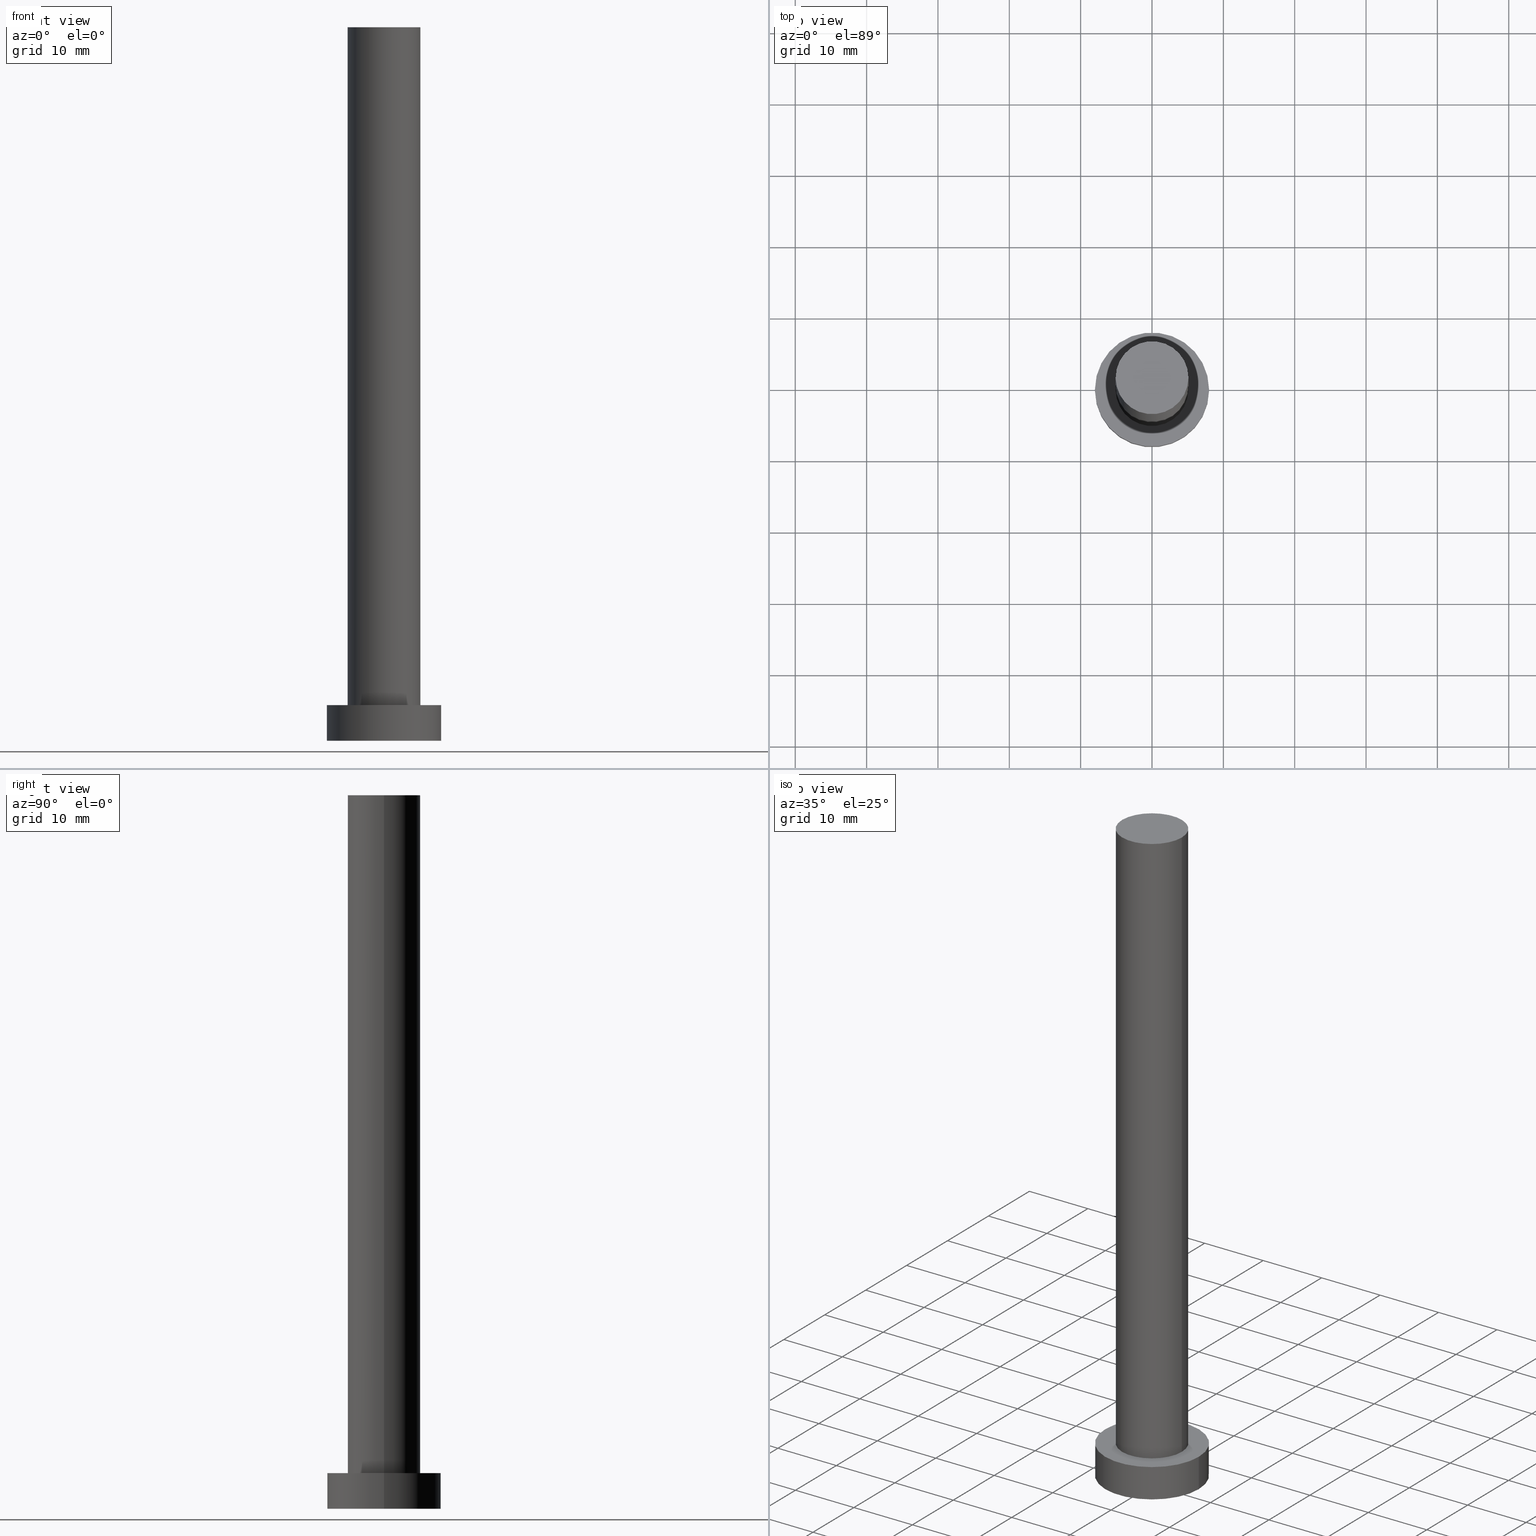
[diagram: canonical four-view strip — front | top / right | iso, engineering-drawing reading convention]
A machine part, canonical four-view strip (front | top / right | iso — engineering-drawing reading convention). The complete STEP part file that produces these views, byte-faithful:
ISO-10303-21;
HEADER;
FILE_DESCRIPTION (( 'STEP AP203' ),
    '1' );
FILE_NAME ('2f03.STEP',
    '2023-02-13T09:57:52',
    ( '' ),
    ( '' ),
    'SwSTEP 2.0',
    'SolidWorks 2019',
    '' );
FILE_SCHEMA (( 'CONFIG_CONTROL_DESIGN' ));
ENDSEC;

DATA;
#1 = DIRECTION ( 'NONE',  ( 1.000000000000000000, 0.000000000000000000, 0.000000000000000000 ) ) ;
#2 = DIRECTION ( 'NONE',  ( -0.000000000000000000, -0.000000000000000000, -1.000000000000000000 ) ) ;
#3 = AXIS2_PLACEMENT_3D ( 'NONE', #49, #132, #120 ) ;
#4 = EDGE_CURVE ( 'NONE', #76, #124, #122, .T. ) ;
#5 = AXIS2_PLACEMENT_3D ( 'NONE', #81, #219, #125 ) ;
#6 = DIRECTION ( 'NONE',  ( 1.000000000000000000, 0.000000000000000000, -0.000000000000000000 ) ) ;
#7 = PERSON_AND_ORGANIZATION_ROLE ( 'creator' ) ;
#8 = ORIENTED_EDGE ( 'NONE', *, *, #147, .F. ) ;
#9 = DIRECTION ( 'NONE',  ( 0.000000000000000000, 0.000000000000000000, 1.000000000000000000 ) ) ;
#10 = PERSON_AND_ORGANIZATION_ROLE ( 'creator' ) ;
#11 = ORIENTED_EDGE ( 'NONE', *, *, #139, .T. ) ;
#12 = FACE_OUTER_BOUND ( 'NONE', #212, .T. ) ;
#13 = AXIS2_PLACEMENT_3D ( 'NONE', #22, #65, #1 ) ;
#14 = PERSON_AND_ORGANIZATION ( #223, #46 ) ;
#15 = ORIENTED_EDGE ( 'NONE', *, *, #48, .T. ) ;
#16 = LINE ( 'NONE', #183, #117 ) ;
#17 = SECURITY_CLASSIFICATION_LEVEL ( 'unclassified' ) ;
#18 = ORIENTED_EDGE ( 'NONE', *, *, #147, .T. ) ;
#19 = CARTESIAN_POINT ( 'NONE',  ( 0.000000000000000000, 0.000000000000000000, 100.0000000000000000 ) ) ;
#20 = PRODUCT_DEFINITION_SHAPE ( 'NONE', 'NONE',  #180 ) ;
#21 = CC_DESIGN_PERSON_AND_ORGANIZATION_ASSIGNMENT ( #177, #10, ( #180 ) ) ;
#22 = CARTESIAN_POINT ( 'NONE',  ( 0.000000000000000000, 0.000000000000000000, 5.000000000000000000 ) ) ;
#23 = CYLINDRICAL_SURFACE ( 'NONE', #29, 5.100000000000001421 ) ;
#24 = APPROVAL_PERSON_ORGANIZATION ( #138, #130, #35 ) ;
#25 = DIRECTION ( 'NONE',  ( -1.000000000000000000, 0.000000000000000000, 0.000000000000000000 ) ) ;
#26 = EDGE_CURVE ( 'NONE', #215, #99, #16, .T. ) ;
#27 = EDGE_CURVE ( 'NONE', #217, #215, #63, .T. ) ;
#28 = PLANE ( 'NONE',  #3 ) ;
#29 = AXIS2_PLACEMENT_3D ( 'NONE', #111, #2, #25 ) ;
#30 = ORIENTED_EDGE ( 'NONE', *, *, #26, .F. ) ;
#31 = DIRECTION ( 'NONE',  ( 1.000000000000000000, 0.000000000000000000, 0.000000000000000000 ) ) ;
#32 = EDGE_LOOP ( 'NONE', ( #185, #144 ) ) ;
#33 = DIRECTION ( 'NONE',  ( 0.000000000000000000, 0.000000000000000000, 1.000000000000000000 ) ) ;
#34 = EDGE_CURVE ( 'NONE', #104, #124, #101, .T. ) ;
#35 = APPROVAL_ROLE ( '' ) ;
#36 = LOCAL_TIME ( 10, 57, 52.00000000000000000, #98 ) ;
#37 = ORIENTED_EDGE ( 'NONE', *, *, #213, .T. ) ;
#38 = DATE_AND_TIME ( #161, #136 ) ;
#39 = ORIENTED_EDGE ( 'NONE', *, *, #139, .F. ) ;
#40 = CLOSED_SHELL ( 'NONE', ( #220, #93, #255, #160, #66, #204, #127 ) ) ;
#41 = CYLINDRICAL_SURFACE ( 'NONE', #170, 5.100000000000001421 ) ;
#42 = CC_DESIGN_DATE_AND_TIME_ASSIGNMENT ( #38, #59, ( #180 ) ) ;
#43 = DIRECTION ( 'NONE',  ( -1.000000000000000000, 0.000000000000000000, 0.000000000000000000 ) ) ;
#44 = DIRECTION ( 'NONE',  ( -1.000000000000000000, 0.000000000000000000, 0.000000000000000000 ) ) ;
#45 =( NAMED_UNIT ( * ) PLANE_ANGLE_UNIT ( ) SI_UNIT ( $, .RADIAN. ) );
#46 = ORGANIZATION ( 'NEUR�EN�', 'NEUR�EN�', '' ) ;
#47 = CARTESIAN_POINT ( 'NONE',  ( -8.000000000000000000, 0.000000000000000000, 5.000000000000000000 ) ) ;
#48 = EDGE_CURVE ( 'NONE', #215, #217, #191, .T. ) ;
#49 = CARTESIAN_POINT ( 'NONE',  ( 0.000000000000000000, 0.000000000000000000, 100.0000000000000000 ) ) ;
#50 = LINE ( 'NONE', #47, #239 ) ;
#51 = DIRECTION ( 'NONE',  ( 1.000000000000000000, 0.000000000000000000, 0.000000000000000000 ) ) ;
#52 = CALENDAR_DATE ( 2023, 13, 2 ) ;
#53 = EDGE_CURVE ( 'NONE', #178, #76, #79, .T. ) ;
#54 = MANIFOLD_SOLID_BREP ( 'P�idat vysunut�m3', #40 ) ;
#55 = APPROVAL_STATUS ( 'not_yet_approved' ) ;
#56 = ORIENTED_EDGE ( 'NONE', *, *, #26, .T. ) ;
#57 = COORDINATED_UNIVERSAL_TIME_OFFSET ( 1, 0, .AHEAD. ) ;
#58 = ORIENTED_EDGE ( 'NONE', *, *, #53, .F. ) ;
#59 = DATE_TIME_ROLE ( 'creation_date' ) ;
#60 = CC_DESIGN_PERSON_AND_ORGANIZATION_ASSIGNMENT ( #164, #7, ( #226 ) ) ;
#61 = ORIENTED_EDGE ( 'NONE', *, *, #34, .F. ) ;
#62 = PERSON_AND_ORGANIZATION ( #223, #46 ) ;
#63 = CIRCLE ( 'NONE', #206, 5.100000000000001421 ) ;
#64 = CC_DESIGN_APPROVAL ( #119, ( #113 ) ) ;
#65 = DIRECTION ( 'NONE',  ( 0.000000000000000000, 0.000000000000000000, 1.000000000000000000 ) ) ;
#66 = ADVANCED_FACE ( 'NONE', ( #179 ), #246, .F. ) ;
#67 = CARTESIAN_POINT ( 'NONE',  ( 8.000000000000000000, 9.797174393178825657E-16, 0.000000000000000000 ) ) ;
#68 = CYLINDRICAL_SURFACE ( 'NONE', #135, 8.000000000000000000 ) ;
#69 = DATE_TIME_ROLE ( 'classification_date' ) ;
#70 = EDGE_CURVE ( 'NONE', #217, #218, #225, .T. ) ;
#71 = DIRECTION ( 'NONE',  ( 0.000000000000000000, 0.000000000000000000, 1.000000000000000000 ) ) ;
#72 = DIRECTION ( 'NONE',  ( 0.000000000000000000, 0.000000000000000000, 1.000000000000000000 ) ) ;
#73 = PERSON_AND_ORGANIZATION ( #223, #46 ) ;
#74 = ORIENTED_EDGE ( 'NONE', *, *, #4, .T. ) ;
#75 = APPROVAL_ROLE ( '' ) ;
#76 = VERTEX_POINT ( 'NONE', #172 ) ;
#77 = DIRECTION ( 'NONE',  ( 0.000000000000000000, 0.000000000000000000, 1.000000000000000000 ) ) ;
#78 = APPROVAL_STATUS ( 'not_yet_approved' ) ;
#79 = CIRCLE ( 'NONE', #91, 8.000000000000000000 ) ;
#80 = ORIENTED_EDGE ( 'NONE', *, *, #112, .F. ) ;
#81 = CARTESIAN_POINT ( 'NONE',  ( 0.000000000000000000, 0.000000000000000000, 0.000000000000000000 ) ) ;
#82 = APPROVAL_DATE_TIME ( #252, #184 ) ;
#83 = ORIENTED_EDGE ( 'NONE', *, *, #27, .F. ) ;
#84 = CARTESIAN_POINT ( 'NONE',  ( 0.000000000000000000, 0.000000000000000000, 5.000000000000000000 ) ) ;
#85 = DIRECTION ( 'NONE',  ( 1.000000000000000000, 0.000000000000000000, 0.000000000000000000 ) ) ;
#86 = VECTOR ( 'NONE', #198, 1000.000000000000000 ) ;
#87 = CARTESIAN_POINT ( 'NONE',  ( -5.100000000000001421, 0.000000000000000000, 100.0000000000000000 ) ) ;
#88 = CYLINDRICAL_SURFACE ( 'NONE', #126, 8.000000000000000000 ) ;
#89 = APPLICATION_CONTEXT ( 'configuration controlled 3d designs of mechanical parts and assemblies' ) ;
#90 = DIRECTION ( 'NONE',  ( 0.000000000000000000, 0.000000000000000000, 1.000000000000000000 ) ) ;
#91 = AXIS2_PLACEMENT_3D ( 'NONE', #100, #95, #155 ) ;
#92 = LOCAL_TIME ( 10, 57, 52.00000000000000000, #123 ) ;
#93 = ADVANCED_FACE ( 'NONE', ( #175 ), #68, .T. ) ;
#94 = EDGE_LOOP ( 'NONE', ( #39, #74, #18, #80 ) ) ;
#95 = DIRECTION ( 'NONE',  ( 0.000000000000000000, 0.000000000000000000, 1.000000000000000000 ) ) ;
#96 = CARTESIAN_POINT ( 'NONE',  ( 0.000000000000000000, 0.000000000000000000, 0.000000000000000000 ) ) ;
#97 = CARTESIAN_POINT ( 'NONE',  ( -5.100000000000001421, 0.000000000000000000, 5.000000000000000000 ) ) ;
#98 = COORDINATED_UNIVERSAL_TIME_OFFSET ( 1, 0, .AHEAD. ) ;
#99 = VERTEX_POINT ( 'NONE', #97 ) ;
#100 = CARTESIAN_POINT ( 'NONE',  ( 0.000000000000000000, 0.000000000000000000, 5.000000000000000000 ) ) ;
#101 = CIRCLE ( 'NONE', #188, 8.000000000000000000 ) ;
#102 = EDGE_LOOP ( 'NONE', ( #224, #141, #56, #244 ) ) ;
#103 = PLANE ( 'NONE',  #232 ) ;
#104 = VERTEX_POINT ( 'NONE', #152 ) ;
#105 = PERSON_AND_ORGANIZATION_ROLE ( 'classification_officer' ) ;
#106 = DATE_AND_TIME ( #216, #36 ) ;
#107 = AXIS2_PLACEMENT_3D ( 'NONE', #137, #9, #116 ) ;
#108 = ORIENTED_EDGE ( 'NONE', *, *, #53, .T. ) ;
#109 = DIRECTION ( 'NONE',  ( -0.000000000000000000, -0.000000000000000000, -1.000000000000000000 ) ) ;
#110 = FACE_BOUND ( 'NONE', #32, .T. ) ;
#111 = CARTESIAN_POINT ( 'NONE',  ( 0.000000000000000000, 0.000000000000000000, 100.0000000000000000 ) ) ;
#112 = EDGE_CURVE ( 'NONE', #178, #104, #50, .T. ) ;
#113 = SECURITY_CLASSIFICATION ( '', '', #17 ) ;
#114 = VECTOR ( 'NONE', #192, 1000.000000000000000 ) ;
#115 = CARTESIAN_POINT ( 'NONE',  ( 0.000000000000000000, 0.000000000000000000, 0.000000000000000000 ) ) ;
#116 = DIRECTION ( 'NONE',  ( 1.000000000000000000, 0.000000000000000000, 0.000000000000000000 ) ) ;
#117 = VECTOR ( 'NONE', #250, 1000.000000000000000 ) ;
#118 = COORDINATED_UNIVERSAL_TIME_OFFSET ( 1, 0, .AHEAD. ) ;
#119 = APPROVAL ( #78, 'NEUR�EN�' ) ;
#120 = DIRECTION ( 'NONE',  ( 1.000000000000000000, 0.000000000000000000, -0.000000000000000000 ) ) ;
#121 = APPROVAL_PERSON_ORGANIZATION ( #73, #184, #75 ) ;
#122 = LINE ( 'NONE', #228, #86 ) ;
#123 = COORDINATED_UNIVERSAL_TIME_OFFSET ( 1, 0, .AHEAD. ) ;
#124 = VERTEX_POINT ( 'NONE', #67 ) ;
#125 = DIRECTION ( 'NONE',  ( 1.000000000000000000, 0.000000000000000000, 0.000000000000000000 ) ) ;
#126 = AXIS2_PLACEMENT_3D ( 'NONE', #149, #109, #44 ) ;
#127 = ADVANCED_FACE ( 'NONE', ( #154 ), #28, .T. ) ;
#128 = FACE_OUTER_BOUND ( 'NONE', #102, .T. ) ;
#129 = FACE_OUTER_BOUND ( 'NONE', #190, .T. ) ;
#130 = APPROVAL ( #55, 'NEUR�EN�' ) ;
#131 = AXIS2_PLACEMENT_3D ( 'NONE', #237, #90, #85 ) ;
#132 = DIRECTION ( 'NONE',  ( 0.000000000000000000, 0.000000000000000000, 1.000000000000000000 ) ) ;
#133 =( LENGTH_UNIT ( ) NAMED_UNIT ( * ) SI_UNIT ( .MILLI., .METRE. ) );
#134 = CC_DESIGN_PERSON_AND_ORGANIZATION_ASSIGNMENT ( #247, #243, ( #226 ) ) ;
#135 = AXIS2_PLACEMENT_3D ( 'NONE', #241, #229, #174 ) ;
#136 = LOCAL_TIME ( 10, 57, 52.00000000000000000, #57 ) ;
#137 = CARTESIAN_POINT ( 'NONE',  ( 0.000000000000000000, 0.000000000000000000, 100.0000000000000000 ) ) ;
#138 = PERSON_AND_ORGANIZATION ( #223, #46 ) ;
#139 = EDGE_CURVE ( 'NONE', #76, #178, #156, .T. ) ;
#140 = MECHANICAL_CONTEXT ( 'NONE', #169, 'mechanical' ) ;
#141 = ORIENTED_EDGE ( 'NONE', *, *, #48, .F. ) ;
#142 = CC_DESIGN_SECURITY_CLASSIFICATION ( #113, ( #226 ) ) ;
#143 = COORDINATED_UNIVERSAL_TIME_OFFSET ( 1, 0, .AHEAD. ) ;
#144 = ORIENTED_EDGE ( 'NONE', *, *, #213, .F. ) ;
#145 = CIRCLE ( 'NONE', #5, 8.000000000000000000 ) ;
#146 = APPROVAL_PERSON_ORGANIZATION ( #14, #119, #211 ) ;
#147 = EDGE_CURVE ( 'NONE', #124, #104, #145, .T. ) ;
#148 = DIRECTION ( 'NONE',  ( 1.000000000000000000, 0.000000000000000000, -0.000000000000000000 ) ) ;
#149 = CARTESIAN_POINT ( 'NONE',  ( 0.000000000000000000, 0.000000000000000000, 5.000000000000000000 ) ) ;
#150 = CIRCLE ( 'NONE', #13, 5.100000000000001421 ) ;
#151 = CARTESIAN_POINT ( 'NONE',  ( 5.100000000000001421, 6.245698675651502811E-16, 5.000000000000000000 ) ) ;
#152 = CARTESIAN_POINT ( 'NONE',  ( -8.000000000000000000, 0.000000000000000000, 0.000000000000000000 ) ) ;
#153 = CC_DESIGN_APPROVAL ( #184, ( #180 ) ) ;
#154 = FACE_OUTER_BOUND ( 'NONE', #254, .T. ) ;
#155 = DIRECTION ( 'NONE',  ( 1.000000000000000000, 0.000000000000000000, 0.000000000000000000 ) ) ;
#156 = CIRCLE ( 'NONE', #245, 8.000000000000000000 ) ;
#157 = DIRECTION ( 'NONE',  ( 0.000000000000000000, 0.000000000000000000, 1.000000000000000000 ) ) ;
#158 = CARTESIAN_POINT ( 'NONE',  ( 0.000000000000000000, 0.000000000000000000, 0.000000000000000000 ) ) ;
#159 = ORIENTED_EDGE ( 'NONE', *, *, #27, .T. ) ;
#160 = ADVANCED_FACE ( 'NONE', ( #110, #12 ), #103, .T. ) ;
#161 = CALENDAR_DATE ( 2023, 13, 2 ) ;
#162 = ORIENTED_EDGE ( 'NONE', *, *, #70, .T. ) ;
#163 = CARTESIAN_POINT ( 'NONE',  ( 0.000000000000000000, 0.000000000000000000, 100.0000000000000000 ) ) ;
#164 = PERSON_AND_ORGANIZATION ( #223, #46 ) ;
#165 = DIRECTION ( 'NONE',  ( 1.000000000000000000, 0.000000000000000000, 0.000000000000000000 ) ) ;
#166 = UNCERTAINTY_MEASURE_WITH_UNIT (LENGTH_MEASURE( 1.000000000000000082E-05 ), #133, 'distance_accuracy_value', 'NONE');
#167 =( GEOMETRIC_REPRESENTATION_CONTEXT ( 3 ) GLOBAL_UNCERTAINTY_ASSIGNED_CONTEXT ( ( #166 ) ) GLOBAL_UNIT_ASSIGNED_CONTEXT ( ( #133, #45, #176 ) ) REPRESENTATION_CONTEXT ( 'NONE', 'WORKASPACE' ) );
#168 = CARTESIAN_POINT ( 'NONE',  ( 5.100000000000001421, 6.245698675651502811E-16, 100.0000000000000000 ) ) ;
#169 = APPLICATION_CONTEXT ( 'configuration controlled 3d designs of mechanical parts and assemblies' ) ;
#170 = AXIS2_PLACEMENT_3D ( 'NONE', #19, #221, #43 ) ;
#171 = EDGE_LOOP ( 'NONE', ( #61, #8 ) ) ;
#172 = CARTESIAN_POINT ( 'NONE',  ( 8.000000000000000000, 9.797174393178825657E-16, 5.000000000000000000 ) ) ;
#173 = DESIGN_CONTEXT ( 'detailed design', #89, 'design' ) ;
#174 = DIRECTION ( 'NONE',  ( -1.000000000000000000, 0.000000000000000000, 0.000000000000000000 ) ) ;
#175 = FACE_OUTER_BOUND ( 'NONE', #94, .T. ) ;
#176 =( NAMED_UNIT ( * ) SI_UNIT ( $, .STERADIAN. ) SOLID_ANGLE_UNIT ( ) );
#177 = PERSON_AND_ORGANIZATION ( #223, #46 ) ;
#178 = VERTEX_POINT ( 'NONE', #203 ) ;
#179 = FACE_OUTER_BOUND ( 'NONE', #171, .T. ) ;
#180 = PRODUCT_DEFINITION ( 'NEZN�M�', '', #226, #173 ) ;
#181 = SHAPE_DEFINITION_REPRESENTATION ( #20, #240 ) ;
#182 = ORIENTED_EDGE ( 'NONE', *, *, #112, .T. ) ;
#183 = CARTESIAN_POINT ( 'NONE',  ( -5.100000000000001421, 0.000000000000000000, 100.0000000000000000 ) ) ;
#184 = APPROVAL ( #249, 'NEUR�EN�' ) ;
#185 = ORIENTED_EDGE ( 'NONE', *, *, #187, .F. ) ;
#186 = LOCAL_TIME ( 10, 57, 52.00000000000000000, #118 ) ;
#187 = EDGE_CURVE ( 'NONE', #99, #218, #253, .T. ) ;
#188 = AXIS2_PLACEMENT_3D ( 'NONE', #115, #71, #165 ) ;
#189 = APPLICATION_PROTOCOL_DEFINITION ( 'international standard', 'config_control_design', 1994, #169 ) ;
#190 = EDGE_LOOP ( 'NONE', ( #208, #58, #182, #200 ) ) ;
#191 = CIRCLE ( 'NONE', #107, 5.100000000000001421 ) ;
#192 = DIRECTION ( 'NONE',  ( -0.000000000000000000, -0.000000000000000000, -1.000000000000000000 ) ) ;
#193 = CC_DESIGN_APPROVAL ( #130, ( #226 ) ) ;
#194 = PERSON_AND_ORGANIZATION_ROLE ( 'design_owner' ) ;
#195 = PERSON_AND_ORGANIZATION ( #223, #46 ) ;
#196 = CALENDAR_DATE ( 2023, 13, 2 ) ;
#197 = CALENDAR_DATE ( 2023, 13, 2 ) ;
#198 = DIRECTION ( 'NONE',  ( -0.000000000000000000, -0.000000000000000000, -1.000000000000000000 ) ) ;
#199 = DATE_AND_TIME ( #52, #202 ) ;
#200 = ORIENTED_EDGE ( 'NONE', *, *, #34, .T. ) ;
#201 = PRODUCT ( '2f03', '2f03', '', ( #140 ) ) ;
#202 = LOCAL_TIME ( 10, 57, 52.00000000000000000, #143 ) ;
#203 = CARTESIAN_POINT ( 'NONE',  ( -8.000000000000000000, 0.000000000000000000, 5.000000000000000000 ) ) ;
#204 = ADVANCED_FACE ( 'NONE', ( #128 ), #41, .T. ) ;
#205 = FACE_OUTER_BOUND ( 'NONE', #231, .T. ) ;
#206 = AXIS2_PLACEMENT_3D ( 'NONE', #163, #233, #51 ) ;
#207 = AXIS2_PLACEMENT_3D ( 'NONE', #158, #157, #31 ) ;
#208 = ORIENTED_EDGE ( 'NONE', *, *, #4, .F. ) ;
#209 = AXIS2_PLACEMENT_3D ( 'NONE', #96, #72, #6 ) ;
#210 = CARTESIAN_POINT ( 'NONE',  ( 5.100000000000001421, 6.245698675651502811E-16, 100.0000000000000000 ) ) ;
#211 = APPROVAL_ROLE ( '' ) ;
#212 = EDGE_LOOP ( 'NONE', ( #108, #11 ) ) ;
#213 = EDGE_CURVE ( 'NONE', #218, #99, #150, .T. ) ;
#214 = APPROVAL_DATE_TIME ( #199, #119 ) ;
#215 = VERTEX_POINT ( 'NONE', #87 ) ;
#216 = CALENDAR_DATE ( 2023, 13, 2 ) ;
#217 = VERTEX_POINT ( 'NONE', #168 ) ;
#218 = VERTEX_POINT ( 'NONE', #151 ) ;
#219 = DIRECTION ( 'NONE',  ( 0.000000000000000000, 0.000000000000000000, 1.000000000000000000 ) ) ;
#220 = ADVANCED_FACE ( 'NONE', ( #205 ), #23, .T. ) ;
#221 = DIRECTION ( 'NONE',  ( -0.000000000000000000, -0.000000000000000000, -1.000000000000000000 ) ) ;
#222 = CC_DESIGN_PERSON_AND_ORGANIZATION_ASSIGNMENT ( #195, #194, ( #201 ) ) ;
#223 = PERSON ( 'NEUR�EN�', 'NEUR�EN�', 'NEUR�EN�', ('NEUR�EN�'), ('NEUR�EN�'), ('NEUR�EN�') ) ;
#224 = ORIENTED_EDGE ( 'NONE', *, *, #70, .F. ) ;
#225 = LINE ( 'NONE', #210, #114 ) ;
#226 = PRODUCT_DEFINITION_FORMATION_WITH_SPECIFIED_SOURCE ( 'LIBOVOLN�', '', #201, .NOT_KNOWN. ) ;
#227 = APPROVAL_DATE_TIME ( #106, #130 ) ;
#228 = CARTESIAN_POINT ( 'NONE',  ( 8.000000000000000000, 9.797174393178825657E-16, 5.000000000000000000 ) ) ;
#229 = DIRECTION ( 'NONE',  ( -0.000000000000000000, -0.000000000000000000, -1.000000000000000000 ) ) ;
#230 = APPLICATION_PROTOCOL_DEFINITION ( 'international standard', 'config_control_design', 1994, #89 ) ;
#231 = EDGE_LOOP ( 'NONE', ( #83, #162, #37, #30 ) ) ;
#232 = AXIS2_PLACEMENT_3D ( 'NONE', #236, #33, #148 ) ;
#233 = DIRECTION ( 'NONE',  ( 0.000000000000000000, 0.000000000000000000, 1.000000000000000000 ) ) ;
#234 = DATE_AND_TIME ( #196, #186 ) ;
#235 = PRODUCT_RELATED_PRODUCT_CATEGORY ( 'detail', '', ( #201 ) ) ;
#236 = CARTESIAN_POINT ( 'NONE',  ( 0.000000000000000000, 0.000000000000000000, 5.000000000000000000 ) ) ;
#237 = CARTESIAN_POINT ( 'NONE',  ( 0.000000000000000000, 0.000000000000000000, 5.000000000000000000 ) ) ;
#238 = CC_DESIGN_DATE_AND_TIME_ASSIGNMENT ( #234, #69, ( #113 ) ) ;
#239 = VECTOR ( 'NONE', #242, 1000.000000000000000 ) ;
#240 = ADVANCED_BREP_SHAPE_REPRESENTATION ( '2f03', ( #54, #207 ), #167 ) ;
#241 = CARTESIAN_POINT ( 'NONE',  ( 0.000000000000000000, 0.000000000000000000, 5.000000000000000000 ) ) ;
#242 = DIRECTION ( 'NONE',  ( -0.000000000000000000, -0.000000000000000000, -1.000000000000000000 ) ) ;
#243 = PERSON_AND_ORGANIZATION_ROLE ( 'design_supplier' ) ;
#244 = ORIENTED_EDGE ( 'NONE', *, *, #187, .T. ) ;
#245 = AXIS2_PLACEMENT_3D ( 'NONE', #84, #77, #251 ) ;
#246 = PLANE ( 'NONE',  #209 ) ;
#247 = PERSON_AND_ORGANIZATION ( #223, #46 ) ;
#248 = CC_DESIGN_PERSON_AND_ORGANIZATION_ASSIGNMENT ( #62, #105, ( #113 ) ) ;
#249 = APPROVAL_STATUS ( 'not_yet_approved' ) ;
#250 = DIRECTION ( 'NONE',  ( -0.000000000000000000, -0.000000000000000000, -1.000000000000000000 ) ) ;
#251 = DIRECTION ( 'NONE',  ( 1.000000000000000000, 0.000000000000000000, 0.000000000000000000 ) ) ;
#252 = DATE_AND_TIME ( #197, #92 ) ;
#253 = CIRCLE ( 'NONE', #131, 5.100000000000001421 ) ;
#254 = EDGE_LOOP ( 'NONE', ( #15, #159 ) ) ;
#255 = ADVANCED_FACE ( 'NONE', ( #129 ), #88, .T. ) ;
ENDSEC;
END-ISO-10303-21;
